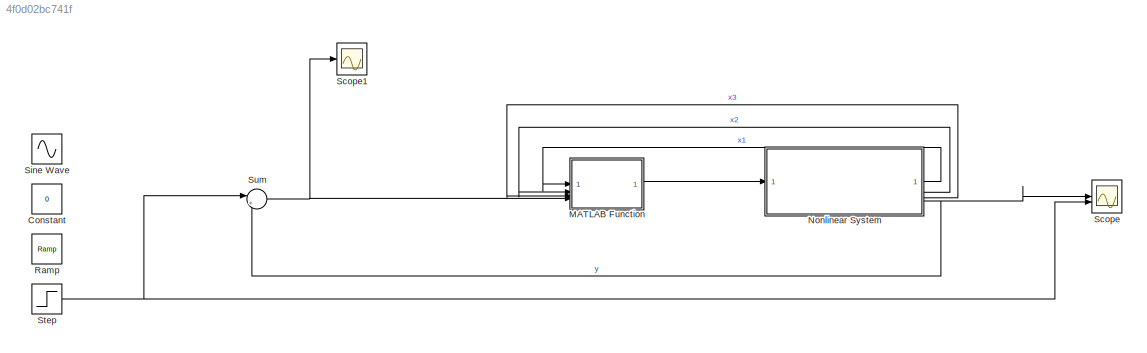
MODEL slx_4f0d02bc741f
KIND model
CONFIG AbsTol = auto
CONFIG EnableMultiTasking = off
CONFIG FixedStep = auto
CONFIG MaxStep = auto
CONFIG MinStep = auto
CONFIG RelTol = 1e-3
CONFIG SampleTimeConstraint = Unconstrained
CONFIG SolverName = VariableStepAuto
CONFIG StartTime = 0.0
CONFIG StopTime = 10.0
BLOCK [Constant] Constant
  Value = 0
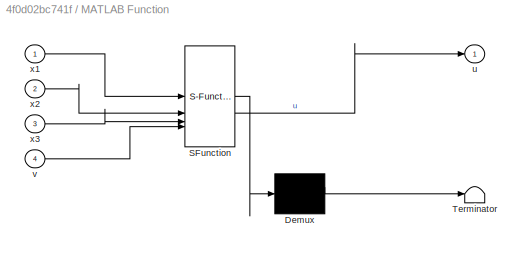
BLOCK [SubSystem] MATLAB Function
  ErrorFcn = Stateflow.Translate.translate
  LibrarySourceBlock = simulink/User-Defined\nFunctions/MATLAB Function
  PermitHierarchicalResolution = ExplicitOnly
  SFBlockType = MATLAB Function
  TreatAsAtomicUnit = on
BLOCK [Demux] MATLAB Function/ Demux 
  Outputs = 1
BLOCK [S-Function] MATLAB Function/ SFunction 
  EnableBusSupport = on
  FunctionName = sf_sfun
  PortCounts = [4 2]
  SFcnIsStateOwnerBlock = off
  SFunctionDeploymentMode = off
  Tag = Stateflow S-Function 2
BLOCK [Terminator] MATLAB Function/ Terminator 
BLOCK [Outport] MATLAB Function/u
BLOCK [Inport] MATLAB Function/v
  Port = 4
BLOCK [Inport] MATLAB Function/x1
BLOCK [Inport] MATLAB Function/x2
  Port = 2
BLOCK [Inport] MATLAB Function/x3
  Port = 3
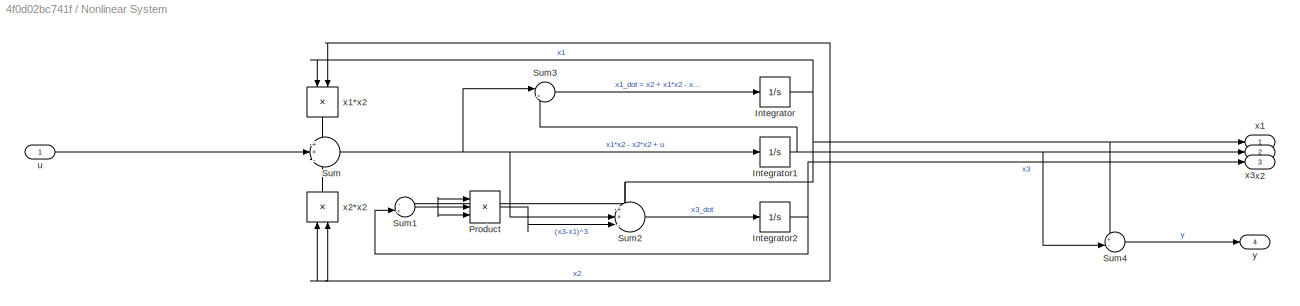
BLOCK [SubSystem] Nonlinear System
BLOCK [Integrator] Nonlinear System/Integrator
  InitialCondition = 1
BLOCK [Integrator] Nonlinear System/Integrator1
  InitialCondition = 1
BLOCK [Integrator] Nonlinear System/Integrator2
  InitialCondition = 1
BLOCK [Product] Nonlinear System/Product
  Inputs = 3
BLOCK [Sum] Nonlinear System/Sum
  Inputs = ++-
BLOCK [Sum] Nonlinear System/Sum1
  Inputs = -+|
BLOCK [Sum] Nonlinear System/Sum2
  Inputs = ++-|
BLOCK [Sum] Nonlinear System/Sum3
  Inputs = |++
BLOCK [Sum] Nonlinear System/Sum4
  Inputs = +-|
BLOCK [Inport] Nonlinear System/u
BLOCK [Outport] Nonlinear System/x1
BLOCK [Product] Nonlinear System/x1*x2
  NameLocation = left
BLOCK [Outport] Nonlinear System/x2
  Port = 2
BLOCK [Product] Nonlinear System/x2*x2
  NameLocation = right
BLOCK [Outport] Nonlinear System/x3
  Port = 3
BLOCK [Outport] Nonlinear System/y
  Port = 4
BLOCK [Reference] Ramp  REF=simulink/Sources/Ramp
  SourceBlock = simulink/Sources/Ramp
  SourceType = Ramp
BLOCK [Scope] Scope
  Floating = off
  NumInputPorts = 2
  ScopeSpecificationString = Simulink.scopes.TimeScopeBlockCfg('CurrentConfiguration', extmgr.ConfigurationSet(extmgr.Configuration('Core','General UI',true,'FigureColor',[1 1 1]),extmgr.Configuration('Core','Source UI',true),extmgr.Configuration('Sources','WiredSimulink',true),extmgr.Configuration('Visuals','Time Domain',true,'SerializedDisplays',{struct('MinYLimReal','-0.125','MaxYLimReal','1.125','YLabelReal','','MinYLimMa...<+1749ch>
BLOCK [Scope] Scope1
  Floating = off
  NumInputPorts = 1
  ScopeSpecificationString = Simulink.scopes.TimeScopeBlockCfg('CurrentConfiguration', extmgr.ConfigurationSet(extmgr.Configuration('Core','General UI',true),extmgr.Configuration('Core','Source UI',true),extmgr.Configuration('Sources','WiredSimulink',true,'DataLoggingVariableName','ScopeData1'),extmgr.Configuration('Visuals','Time Domain',true,'SerializedDisplays',{struct('MinYLimReal','-0.52805','MaxYLimReal','0.72318','YLab...<+1362ch>
BLOCK [Sin] Sine Wave
  SampleTime = 0
BLOCK [Step] Step
  SampleTime = 0
BLOCK [Sum] Sum
  Inputs = |+-
LINE MATLAB Function:1 -> Nonlinear System:1
NET Nonlinear System/Integrator1:1 -> Nonlinear System/Sum3:2, Nonlinear System/Sum4:2, Nonlinear System/x1*x2:2, Nonlinear System/x2*x2:1, Nonlinear System/x2*x2:2, Nonlinear System/x2:1
NET Nonlinear System/Integrator2:1 -> Nonlinear System/Sum1:2, Nonlinear System/x3:1
NET Nonlinear System/Integrator:1 -> Nonlinear System/Sum1:1, Nonlinear System/Sum2:1, Nonlinear System/Sum4:1, Nonlinear System/x1*x2:1, Nonlinear System/x1:1
LINE Nonlinear System/Product:1 -> Nonlinear System/Sum2:3
NET Nonlinear System/Sum1:1 -> Nonlinear System/Product:1, Nonlinear System/Product:2, Nonlinear System/Product:3
LINE Nonlinear System/Sum2:1 -> Nonlinear System/Integrator2:1
LINE Nonlinear System/Sum3:1 -> Nonlinear System/Integrator:1
LINE Nonlinear System/Sum4:1 -> Nonlinear System/y:1
NET Nonlinear System/Sum:1 -> Nonlinear System/Integrator1:1, Nonlinear System/Sum2:2, Nonlinear System/Sum3:1
LINE Nonlinear System/u:1 -> Nonlinear System/Sum:2
LINE Nonlinear System/x1*x2:1 -> Nonlinear System/Sum:1
LINE Nonlinear System/x2*x2:1 -> Nonlinear System/Sum:3
LINE Nonlinear System:1 -> MATLAB Function:1
LINE Nonlinear System:2 -> MATLAB Function:2
LINE Nonlinear System:3 -> MATLAB Function:3
NET Nonlinear System:4 -> Scope:1, Sum:2
NET Step:1 -> Scope:2, Sum:1
NET Sum:1 -> MATLAB Function:4, Scope1:1
note: NET lines group one-source signal fan-out (src -> all destinations, sorted); 1:1 wires keep LINE
CHART MATLAB Function states=1 transitions=1
  STATE_LABEL 'eML_blk_kernel()'
  STATE_LABEL 'SCRIPT:\nfunction u = fcn(x1,x2,x3,v)\nh = x1-x2;\nLfh = x2;\nLf2h = - x2^2 + x1*x2;\nLgLfh = 1;\n\nu =  (v-Lf2h-1.5*Lfh-0.5*h)/LgLfh;\n'
CHART  states=0 transitions=0
